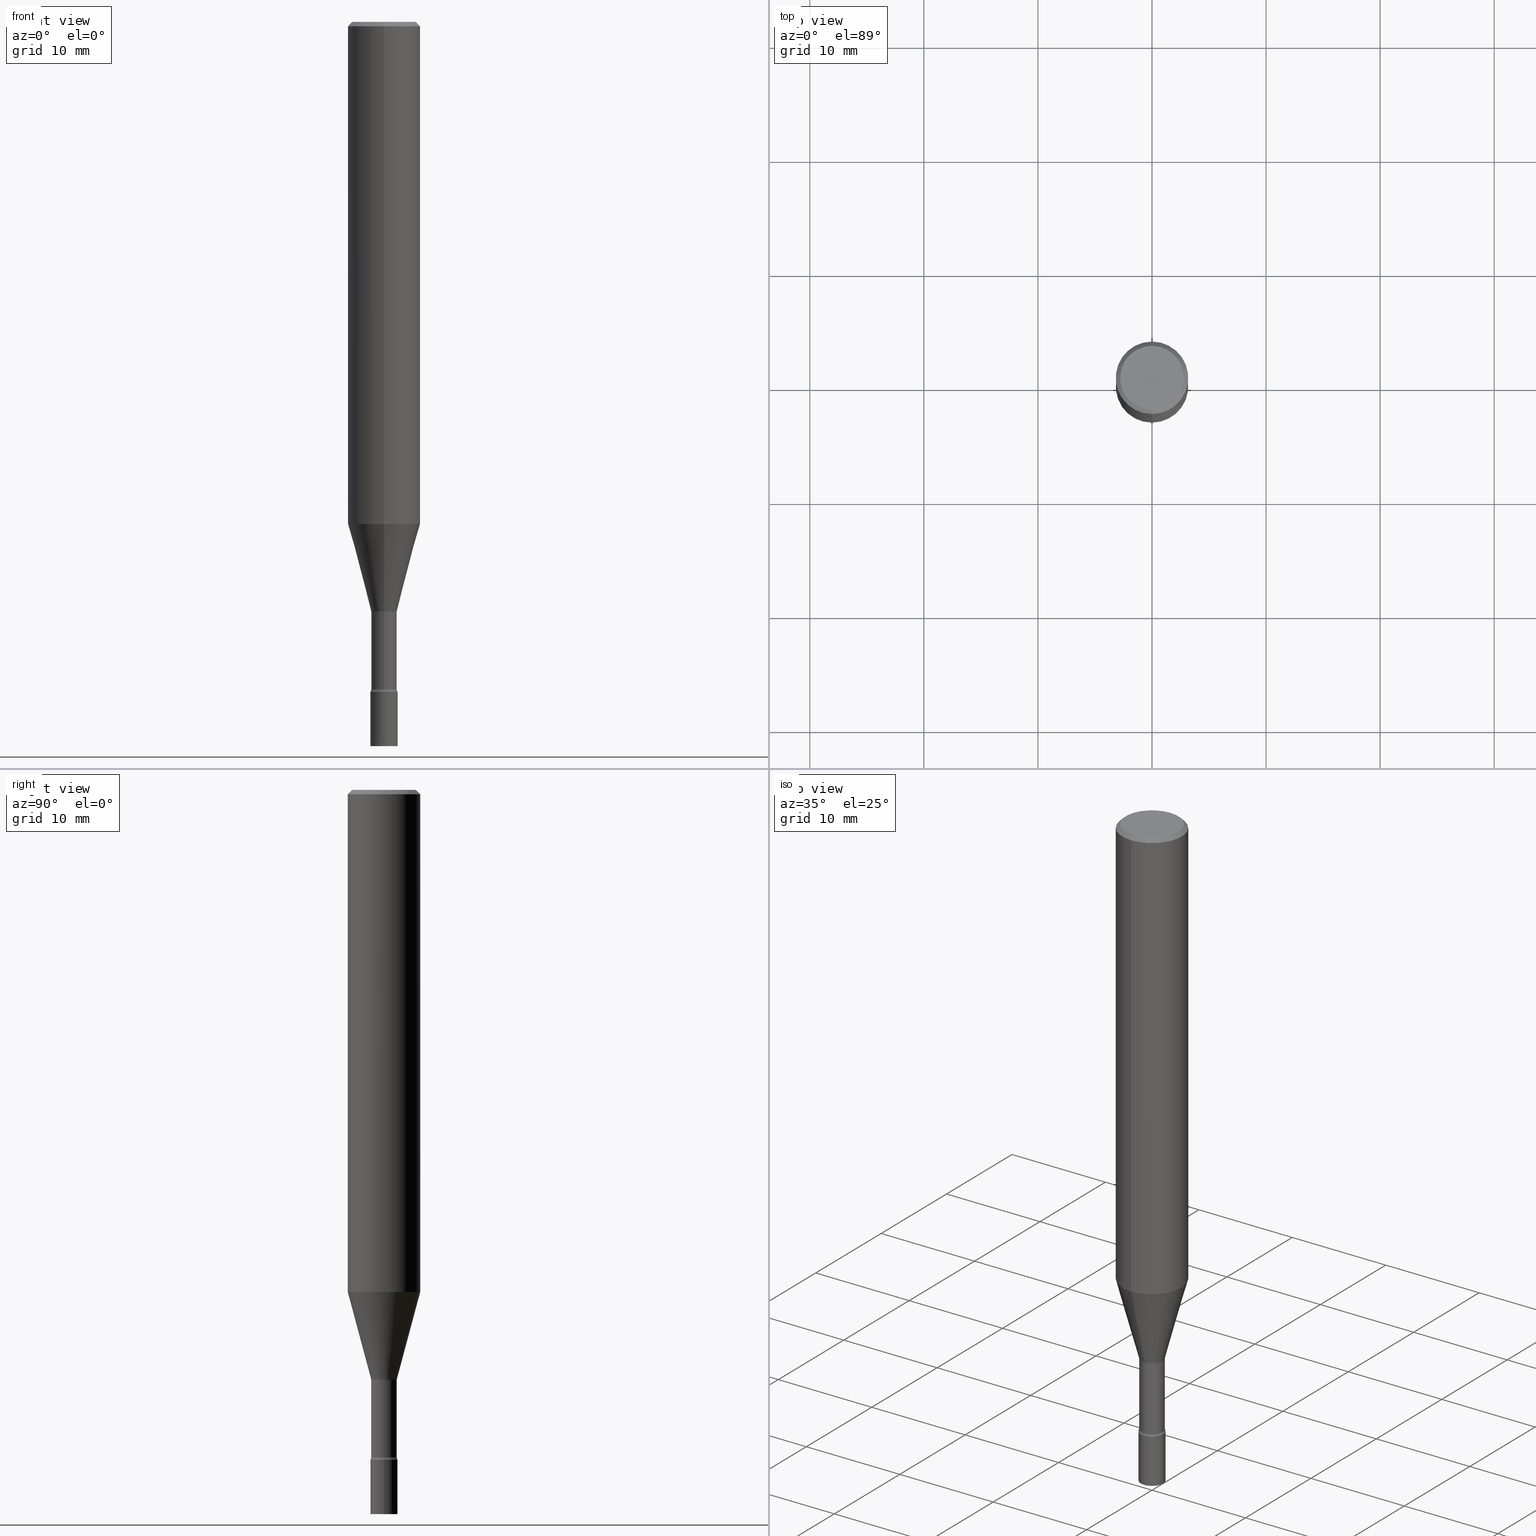
[diagram: canonical four-view strip — front | top / right | iso, engineering-drawing reading convention]
A machine part, canonical four-view strip (front | top / right | iso — engineering-drawing reading convention). The complete STEP part file that produces these views, byte-faithful:
ISO-10303-21;
HEADER;
FILE_DESCRIPTION (( 'STEP AP203' ),
    '1' );
FILE_NAME ('05296.STEP',
    '2024-03-08T23:12:04',
    ( '' ),
    ( '' ),
    'SwSTEP 2.0',
    'SolidWorks 2023',
    '' );
FILE_SCHEMA (( 'CONFIG_CONTROL_DESIGN' ));
ENDSEC;

DATA;
#1 = DIRECTION ( 'NONE',  ( -2.445468806185136877E-29, 3.491481338843145188E-15, 1.000000000000000000 ) ) ;
#2 = ORIENTED_EDGE ( 'NONE', *, *, #275, .F. ) ;
#3 = DIRECTION ( 'NONE',  ( 1.000000000000000000, -6.982962677686277755E-15, 0.000000000000000000 ) ) ;
#4 = ORIENTED_EDGE ( 'NONE', *, *, #489, .F. ) ;
#5 = ORIENTED_EDGE ( 'NONE', *, *, #123, .F. ) ;
#6 = AXIS2_PLACEMENT_3D ( 'NONE', #406, #161, #45 ) ;
#7 = DIRECTION ( 'NONE',  ( 2.445616737647772983E-29, -3.491269492568914221E-15, -1.000000000000000000 ) ) ;
#8 = AXIS2_PLACEMENT_3D ( 'NONE', #22, #463, #139 ) ;
#9 = ORIENTED_EDGE ( 'NONE', *, *, #277, .T. ) ;
#10 = CALENDAR_DATE ( 2024, 8, 3 ) ;
#11 = LINE ( 'NONE', #128, #459 ) ;
#12 = CARTESIAN_POINT ( 'NONE',  ( 8.204981146281365554E-16, 0.1100000000000000283, -3.975340620633669494E-16 ) ) ;
#13 = EDGE_LOOP ( 'NONE', ( #29, #88, #135, #5 ) ) ;
#14 = ORIENTED_EDGE ( 'NONE', *, *, #110, .T. ) ;
#15 = LOCAL_TIME ( 18, 12, 4.000000000000000000, #200 ) ;
#16 = DIRECTION ( 'NONE',  ( -2.445468806185136597E-29, 3.491481338843145583E-15, 1.000000000000000000 ) ) ;
#17 = TOROIDAL_SURFACE ( 'NONE', #331, 0.05910000000000002751, 0.01500000000000000638 ) ;
#18 = DIRECTION ( 'NONE',  ( -2.445616737647772983E-29, 3.491269492568914221E-15, 1.000000000000000000 ) ) ;
#19 = VERTEX_POINT ( 'NONE', #114 ) ;
#20 = VERTEX_POINT ( 'NONE', #84 ) ;
#21 = ADVANCED_FACE ( 'NONE', ( #82 ), #103, .T. ) ;
#22 = CARTESIAN_POINT ( 'NONE',  ( 3.275009495835424539E-16, 0.04689999999999192731, -2.312000000000000277 ) ) ;
#23 = FACE_OUTER_BOUND ( 'NONE', #519, .T. ) ;
#24 = APPROVAL_PERSON_ORGANIZATION ( #53, #307, #249 ) ;
#25 = ORIENTED_EDGE ( 'NONE', *, *, #420, .T. ) ;
#26 = AXIS2_PLACEMENT_3D ( 'NONE', #212, #16, #234 ) ;
#27 = PRODUCT_RELATED_PRODUCT_CATEGORY ( 'detail', '', ( #326 ) ) ;
#28 = DIRECTION ( 'NONE',  ( -6.982962677686264344E-15, -1.000000000000000000, 6.123693927591976054E-15 ) ) ;
#29 = ORIENTED_EDGE ( 'NONE', *, *, #170, .T. ) ;
#30 = APPROVAL_DATE_TIME ( #225, #70 ) ;
#31 = EDGE_CURVE ( 'NONE', #376, #480, #479, .T. ) ;
#32 = DESIGN_CONTEXT ( 'detailed design', #93, 'design' ) ;
#33 = DIRECTION ( 'NONE',  ( -2.445616737647772983E-29, 3.491269492568914221E-15, 1.000000000000000000 ) ) ;
#34 = AXIS2_PLACEMENT_3D ( 'NONE', #490, #492, #3 ) ;
#35 = DIRECTION ( 'NONE',  ( -2.445616737647772983E-29, 3.491269492568914221E-15, 1.000000000000000000 ) ) ;
#36 = CARTESIAN_POINT ( 'NONE',  ( 4.981358301728348415E-29, -7.112059458123878083E-15, -2.036974787463810888 ) ) ;
#37 = CARTESIAN_POINT ( 'NONE',  ( 0.000000000000000000, 0.000000000000000000, 0.000000000000000000 ) ) ;
#38 = MANIFOLD_SOLID_BREP ( 'Body-Move/Copy2[2]', #407 ) ;
#39 = MANIFOLD_SOLID_BREP ( 'Body-Move/Copy2[1]', #240 ) ;
#40 = EDGE_CURVE ( 'NONE', #461, #263, #472, .T. ) ;
#41 = ORIENTED_EDGE ( 'NONE', *, *, #58, .T. ) ;
#42 = LINE ( 'NONE', #194, #384 ) ;
#43 =( LENGTH_UNIT ( ) NAMED_UNIT ( * ) SI_UNIT ( $, .METRE. ) );
#44 = DIRECTION ( 'NONE',  ( -6.982962677686265922E-15, -1.000000000000000000, 3.491269492568914221E-15 ) ) ;
#45 = DIRECTION ( 'NONE',  ( -6.982962677686265922E-15, -1.000000000000000000, 3.491269492568914221E-15 ) ) ;
#46 = DIRECTION ( 'NONE',  ( -6.982962677686265922E-15, -1.000000000000000000, 6.194666652299914454E-15 ) ) ;
#47 = CALENDAR_DATE ( 2024, 8, 3 ) ;
#48 = DIRECTION ( 'NONE',  ( 1.000000000000000000, -6.982962677686277755E-15, 0.000000000000000000 ) ) ;
#49 = ORIENTED_EDGE ( 'NONE', *, *, #393, .F. ) ;
#50 = EDGE_LOOP ( 'NONE', ( #105, #218 ) ) ;
#51 = DATE_AND_TIME ( #47, #56 ) ;
#52 = DIRECTION ( 'NONE',  ( -6.982962677686264344E-15, -1.000000000000000000, 6.123693927591976054E-15 ) ) ;
#53 = PERSON_AND_ORGANIZATION ( #148, #363 ) ;
#54 = AXIS2_PLACEMENT_3D ( 'NONE', #388, #221, #348 ) ;
#55 = FACE_OUTER_BOUND ( 'NONE', #117, .T. ) ;
#56 = LOCAL_TIME ( 18, 12, 4.000000000000000000, #333 ) ;
#57 = ORIENTED_EDGE ( 'NONE', *, *, #40, .T. ) ;
#58 = EDGE_CURVE ( 'NONE', #297, #227, #42, .T. ) ;
#59 = CARTESIAN_POINT ( 'NONE',  ( 5.653923879900035579E-29, -8.072304855405352780E-15, -2.312000000000000277 ) ) ;
#60 = LINE ( 'NONE', #106, #342 ) ;
#61 = ORIENTED_EDGE ( 'NONE', *, *, #356, .T. ) ;
#62 = CARTESIAN_POINT ( 'NONE',  ( -0.04689999999999999725, -8.067259558185121499E-15, -2.500000000000000000 ) ) ;
#63 = AXIS2_PLACEMENT_3D ( 'NONE', #510, #197, #317 ) ;
#64 = AXIS2_PLACEMENT_3D ( 'NONE', #487, #125, #52 ) ;
#65 = ORIENTED_EDGE ( 'NONE', *, *, #310, .F. ) ;
#66 = DIRECTION ( 'NONE',  ( -2.445616737647772983E-29, 3.491269492568914221E-15, 1.000000000000000000 ) ) ;
#67 = VERTEX_POINT ( 'NONE', #520 ) ;
#68 = CARTESIAN_POINT ( 'NONE',  ( 5.632582347746439260E-29, -8.041834803582102873E-15, -2.303273030308291336 ) ) ;
#69 = ORIENTED_EDGE ( 'NONE', *, *, #356, .F. ) ;
#70 = APPROVAL ( #111, 'UNSPECIFIED' ) ;
#71 = CARTESIAN_POINT ( 'NONE',  ( 4.972165051557140757E-29, -7.098073827060517984E-15, -2.033092501787272965 ) ) ;
#72 = AXIS2_PLACEMENT_3D ( 'NONE', #465, #386, #258 ) ;
#73 = APPLICATION_PROTOCOL_DEFINITION ( 'international standard', 'config_control_design', 1994, #93 ) ;
#74 = PERSON_AND_ORGANIZATION ( #148, #363 ) ;
#75 = CARTESIAN_POINT ( 'NONE',  ( 0.000000000000000000, 0.000000000000000000, 0.000000000000000000 ) ) ;
#76 = CARTESIAN_POINT ( 'NONE',  ( 4.238442338125165839E-29, -6.050639171426887853E-15, -1.733077089667678816 ) ) ;
#77 = UNCERTAINTY_MEASURE_WITH_UNIT (LENGTH_MEASURE( 1.000000000000000082E-05 ), #313, 'distance_accuracy_value', 'NONE');
#78 = DIRECTION ( 'NONE',  ( 1.000000000000000000, -6.982962677686266711E-15, 4.876176775795936353E-29 ) ) ;
#79 = AXIS2_PLACEMENT_3D ( 'NONE', #290, #455, #452 ) ;
#80 = CIRCLE ( 'NONE', #398, 0.04461111260566397174 ) ;
#81 = CIRCLE ( 'NONE', #437, 0.01500000000000003587 ) ;
#82 = FACE_OUTER_BOUND ( 'NONE', #108, .T. ) ;
#83 = APPLICATION_PROTOCOL_DEFINITION ( 'international standard', 'config_control_design', 1994, #338 ) ;
#84 = CARTESIAN_POINT ( 'NONE',  ( 3.232969447709020781E-16, 0.04409999999999197201, -2.303273030308291780 ) ) ;
#85 = DIRECTION ( 'NONE',  ( -2.445616737647772983E-29, 3.491269492568914221E-15, 1.000000000000000000 ) ) ;
#86 = AXIS2_PLACEMENT_3D ( 'NONE', #109, #299, #466 ) ;
#87 = DIRECTION ( 'NONE',  ( -2.445616737647772983E-29, 3.491269492568914221E-15, 1.000000000000000000 ) ) ;
#88 = ORIENTED_EDGE ( 'NONE', *, *, #147, .T. ) ;
#89 = APPROVAL_STATUS ( 'not_yet_approved' ) ;
#90 = DIRECTION ( 'NONE',  ( -6.982962677686266711E-15, -1.000000000000000000, 5.824835807386488998E-15 ) ) ;
#91 = DIRECTION ( 'NONE',  ( -2.445616737647772983E-29, 3.491269492568914221E-15, 1.000000000000000000 ) ) ;
#92 = EDGE_CURVE ( 'NONE', #368, #166, #285, .T. ) ;
#93 = APPLICATION_CONTEXT ( 'configuration controlled 3d designs of mechanical parts and assemblies' ) ;
#94 = DATE_AND_TIME ( #369, #15 ) ;
#95 = AXIS2_PLACEMENT_3D ( 'NONE', #36, #192, #188 ) ;
#96 = CARTESIAN_POINT ( 'NONE',  ( 5.654265897441651298E-29, -8.071815066819330562E-15, -2.312000000000000277 ) ) ;
#97 = CC_DESIGN_APPROVAL ( #436, ( #141 ) ) ;
#98 = ORIENTED_EDGE ( 'NONE', *, *, #453, .F. ) ;
#99 = CYLINDRICAL_SURFACE ( 'NONE', #231, 0.04410000000000000031 ) ;
#100 = DIRECTION ( 'NONE',  ( -1.000000000000000000, 6.982962677686265922E-15, -4.883557194083112340E-29 ) ) ;
#101 = ORIENTED_EDGE ( 'NONE', *, *, #403, .T. ) ;
#102 = CARTESIAN_POINT ( 'NONE',  ( -8.575622497214409523E-16, -0.1250000000000000555, -0.01499999999999957791 ) ) ;
#103 = CONICAL_SURFACE ( 'NONE', #214, 0.1250000000000000000, 0.7853981633974473908 ) ;
#104 = CIRCLE ( 'NONE', #34, 0.04689999999999999725 ) ;
#105 = ORIENTED_EDGE ( 'NONE', *, *, #120, .T. ) ;
#106 = CARTESIAN_POINT ( 'NONE',  ( -3.079486540859643229E-16, -0.04410000000000000031, 1.539649846222891150E-16 ) ) ;
#107 = CC_DESIGN_PERSON_AND_ORGANIZATION_ASSIGNMENT ( #282, #238, ( #141 ) ) ;
#108 = EDGE_LOOP ( 'NONE', ( #199, #101, #155, #349 ) ) ;
#109 = CARTESIAN_POINT ( 'NONE',  ( 5.654265897441651298E-29, -8.071815066819330562E-15, -2.312000000000000277 ) ) ;
#110 = EDGE_CURVE ( 'NONE', #20, #394, #449, .T. ) ;
#111 = APPROVAL_STATUS ( 'not_yet_approved' ) ;
#112 = AXIS2_PLACEMENT_3D ( 'NONE', #71, #304, #28 ) ;
#113 = EDGE_LOOP ( 'NONE', ( #433, #295, #294, #49 ) ) ;
#114 = CARTESIAN_POINT ( 'NONE',  ( -0.04689999999999999725, -8.067259558185121499E-15, -2.312000000000000277 ) ) ;
#115 = EDGE_CURVE ( 'NONE', #263, #461, #355, .T. ) ;
#116 = FACE_OUTER_BOUND ( 'NONE', #322, .T. ) ;
#117 = EDGE_LOOP ( 'NONE', ( #206, #284, #246, #423 ) ) ;
#118 = CC_DESIGN_APPROVAL ( #307, ( #311 ) ) ;
#119 = ORIENTED_EDGE ( 'NONE', *, *, #31, .F. ) ;
#120 = EDGE_CURVE ( 'NONE', #166, #368, #428, .T. ) ;
#121 = PERSON_AND_ORGANIZATION ( #148, #363 ) ;
#122 = ORIENTED_EDGE ( 'NONE', *, *, #31, .T. ) ;
#123 = EDGE_CURVE ( 'NONE', #482, #263, #163, .T. ) ;
#124 = APPROVAL_DATE_TIME ( #483, #307 ) ;
#125 = DIRECTION ( 'NONE',  ( -2.445616737647772983E-29, 3.491269492568914221E-15, 1.000000000000000000 ) ) ;
#126 = AXIS2_PLACEMENT_3D ( 'NONE', #268, #278, #517 ) ;
#127 = APPROVAL_ROLE ( '' ) ;
#128 = CARTESIAN_POINT ( 'NONE',  ( 8.728703347107836346E-16, 0.1249999999999999445, -0.01500000000000044874 ) ) ;
#129 = DIRECTION ( 'NONE',  ( 4.937700262164543309E-15, 0.7071067811865444641, -0.7071067811865505703 ) ) ;
#130 = CARTESIAN_POINT ( 'NONE',  ( 3.275009495835470391E-16, 0.04689999999999127506, -2.500000000000000000 ) ) ;
#131 = ORIENTED_EDGE ( 'NONE', *, *, #315, .F. ) ;
#132 = AXIS2_PLACEMENT_3D ( 'NONE', #508, #439, #154 ) ;
#133 = CIRCLE ( 'NONE', #186, 0.04689999999999999725 ) ;
#134 = LINE ( 'NONE', #502, #442 ) ;
#135 = ORIENTED_EDGE ( 'NONE', *, *, #115, .F. ) ;
#136 = CYLINDRICAL_SURFACE ( 'NONE', #302, 0.04410000000000000031 ) ;
#137 = CARTESIAN_POINT ( 'NONE',  ( -4.126930942512085366E-16, -0.05910000000000711212, -2.036974787463810888 ) ) ;
#138 = EDGE_LOOP ( 'NONE', ( #343, #14, #410, #119 ) ) ;
#139 = DIRECTION ( 'NONE',  ( -6.982962677686265922E-15, -1.000000000000000000, 3.491269492568914221E-15 ) ) ;
#140 = ADVANCED_FACE ( 'NONE', ( #254 ), #136, .T. ) ;
#141 = SECURITY_CLASSIFICATION ( '', '', #414 ) ;
#142 = FACE_OUTER_BOUND ( 'NONE', #13, .T. ) ;
#143 = CIRCLE ( 'NONE', #54, 0.04409999999999997949 ) ;
#144 = CONICAL_SURFACE ( 'NONE', #112, 0.04461111260566397174, 0.2617993877991502405 ) ;
#145 = CARTESIAN_POINT ( 'NONE',  ( -3.079486540859080672E-16, -0.04410000000000805637, -2.303273030308291336 ) ) ;
#146 = DIRECTION ( 'NONE',  ( 1.000000000000000000, -7.105427357601001070E-15, 4.926312914173466059E-29 ) ) ;
#147 = EDGE_CURVE ( 'NONE', #67, #461, #193, .T. ) ;
#148 = PERSON ( 'UNSPECIFIED', 'UNSPECIFIED', 'UNSPECIFIED', ('UNSPECIFIED'), ('UNSPECIFIED'), ('UNSPECIFIED') ) ;
#149 = LENGTH_MEASURE_WITH_UNIT ( LENGTH_MEASURE( 0.02539999999999999897 ), #43 );
#150 = LOCAL_TIME ( 18, 12, 4.000000000000000000, #172 ) ;
#151 = AXIS2_PLACEMENT_3D ( 'NONE', #228, #187, #362 ) ;
#152 = AXIS2_PLACEMENT_3D ( 'NONE', #158, #395, #318 ) ;
#153 = ADVANCED_FACE ( 'NONE', ( #116 ), #401, .T. ) ;
#154 = DIRECTION ( 'NONE',  ( 1.000000000000000000, 0.000000000000000000, 0.000000000000000000 ) ) ;
#155 = ORIENTED_EDGE ( 'NONE', *, *, #467, .T. ) ;
#156 = FACE_OUTER_BOUND ( 'NONE', #50, .T. ) ;
#157 = EDGE_CURVE ( 'NONE', #67, #482, #80, .T. ) ;
#158 = CARTESIAN_POINT ( 'NONE',  ( 7.681258945454894762E-16, 0.1100000000000000283, -3.907868531229737716E-16 ) ) ;
#159 = PRODUCT_DEFINITION_SHAPE ( 'NONE', 'NONE',  #289 ) ;
#160 = AXIS2_PLACEMENT_3D ( 'NONE', #447, #85, #46 ) ;
#161 = DIRECTION ( 'NONE',  ( -2.445616737647772983E-29, 3.491269492568914221E-15, 1.000000000000000000 ) ) ;
#162 = APPROVAL_DATE_TIME ( #94, #436 ) ;
#163 = LINE ( 'NONE', #325, #204 ) ;
#164 = FACE_OUTER_BOUND ( 'NONE', #329, .T. ) ;
#165 = CC_DESIGN_PERSON_AND_ORGANIZATION_ASSIGNMENT ( #121, #421, ( #311 ) ) ;
#166 = VERTEX_POINT ( 'NONE', #12 ) ;
#167 = CARTESIAN_POINT ( 'NONE',  ( 0.04689999999999999725, -8.399805804988839471E-15, -2.312000000000000277 ) ) ;
#168 = ORIENTED_EDGE ( 'NONE', *, *, #40, .F. ) ;
#169 = CONICAL_SURFACE ( 'NONE', #286, 0.1250000000000000000, 0.7853981633974473908 ) ;
#170 = EDGE_CURVE ( 'NONE', #482, #67, #373, .T. ) ;
#171 = DIRECTION ( 'NONE',  ( -2.438088387897960049E-29, 3.491481338843145188E-15, 1.000000000000000000 ) ) ;
#172 = COORDINATED_UNIVERSAL_TIME_OFFSET ( 5, 0, .BEHIND. ) ;
#173 = FACE_OUTER_BOUND ( 'NONE', #468, .T. ) ;
#174 = DIRECTION ( 'NONE',  ( 1.000000000000000000, -6.982962677686265922E-15, 4.876176775795935793E-29 ) ) ;
#175 = EDGE_LOOP ( 'NONE', ( #440, #305, #69, #470 ) ) ;
#176 = LOCAL_TIME ( 18, 12, 4.000000000000000000, #454 ) ;
#177 = AXIS2_PLACEMENT_3D ( 'NONE', #474, #485, #233 ) ;
#178 = CIRCLE ( 'NONE', #473, 0.01500000000000003587 ) ;
#179 = DIRECTION ( 'NONE',  ( -2.445616737647772983E-29, 3.491269492568914221E-15, 1.000000000000000000 ) ) ;
#180 = ORIENTED_EDGE ( 'NONE', *, *, #275, .T. ) ;
#181 = DIRECTION ( 'NONE',  ( 1.000000000000000000, -6.982962677686277755E-15, 0.000000000000000000 ) ) ;
#182 = DIRECTION ( 'NONE',  ( -2.445616737647772983E-29, 3.491269492568914221E-15, 1.000000000000000000 ) ) ;
#183 = DIRECTION ( 'NONE',  ( -2.445616737647772983E-29, 3.491269492568914221E-15, 1.000000000000000000 ) ) ;
#184 = CONICAL_SURFACE ( 'NONE', #64, 0.04461111260566397174, 0.2617993877991502405 ) ;
#185 = FACE_OUTER_BOUND ( 'NONE', #138, .T. ) ;
#186 = AXIS2_PLACEMENT_3D ( 'NONE', #261, #344, #181 ) ;
#187 = DIRECTION ( 'NONE',  ( -2.445616737647772983E-29, 3.491269492568914221E-15, 1.000000000000000000 ) ) ;
#188 = DIRECTION ( 'NONE',  ( -6.982962677686265922E-15, -1.000000000000000000, 3.491269492568914221E-15 ) ) ;
#189 = DIRECTION ( 'NONE',  ( -2.445616737647772983E-29, 3.491269492568914221E-15, 1.000000000000000000 ) ) ;
#190 = CC_DESIGN_PERSON_AND_ORGANIZATION_ASSIGNMENT ( #486, #291, ( #311 ) ) ;
#191 = CARTESIAN_POINT ( 'NONE',  ( 3.668425106471662575E-31, -5.236904238853375768E-17, -0.01500000000000001332 ) ) ;
#192 = DIRECTION ( 'NONE',  ( -2.445616737647772983E-29, 3.491269492568914221E-15, 1.000000000000000000 ) ) ;
#193 = LINE ( 'NONE', #361, #256 ) ;
#194 = CARTESIAN_POINT ( 'NONE',  ( 0.04689999999999999725, -3.275009495834859024E-16, 2.286926907848294038E-30 ) ) ;
#195 = ORIENTED_EDGE ( 'NONE', *, *, #157, .T. ) ;
#196 = AXIS2_PLACEMENT_3D ( 'NONE', #422, #91, #247 ) ;
#197 = DIRECTION ( 'NONE',  ( 1.000000000000000000, -7.105427357601001070E-15, 4.926312914173466059E-29 ) ) ;
#198 = LINE ( 'NONE', #367, #501 ) ;
#199 = ORIENTED_EDGE ( 'NONE', *, *, #92, .F. ) ;
#200 = COORDINATED_UNIVERSAL_TIME_OFFSET ( 5, 0, .BEHIND. ) ;
#201 = PLANE ( 'NONE',  #390 ) ;
#202 = ORIENTED_EDGE ( 'NONE', *, *, #123, .T. ) ;
#203 = FACE_OUTER_BOUND ( 'NONE', #354, .T. ) ;
#204 = VECTOR ( 'NONE', #281, 39.37007874015748143 ) ;
#205 = CIRCLE ( 'NONE', #303, 0.1250000000000000000 ) ;
#206 = ORIENTED_EDGE ( 'NONE', *, *, #115, .T. ) ;
#207 = CALENDAR_DATE ( 2024, 8, 3 ) ;
#208 = DIRECTION ( 'NONE',  ( -6.982962677686265922E-15, -1.000000000000000000, 3.491269492568914221E-15 ) ) ;
#209 = EDGE_CURVE ( 'NONE', #166, #242, #11, .T. ) ;
#210 = CARTESIAN_POINT ( 'NONE',  ( 0.000000000000000000, 0.000000000000000000, 0.000000000000000000 ) ) ;
#211 = VERTEX_POINT ( 'NONE', #412 ) ;
#212 = CARTESIAN_POINT ( 'NONE',  ( 6.113672015462842613E-29, -8.728703347107864943E-15, -2.500000000000000000 ) ) ;
#213 = ADVANCED_FACE ( 'NONE', ( #55 ), #283, .T. ) ;
#214 = AXIS2_PLACEMENT_3D ( 'NONE', #191, #445, #360 ) ;
#215 = AXIS2_PLACEMENT_3D ( 'NONE', #385, #182, #306 ) ;
#216 = DIRECTION ( 'NONE',  ( -4.851104656540959542E-15, -0.7071067811865493491, -0.7071067811865456854 ) ) ;
#217 = DIRECTION ( 'NONE',  ( -6.982962677686265922E-15, -1.000000000000000000, 3.483106191921935554E-15 ) ) ;
#218 = ORIENTED_EDGE ( 'NONE', *, *, #92, .T. ) ;
#219 = DIRECTION ( 'NONE',  ( -6.982962677686265922E-15, -1.000000000000000000, 3.491269492568914221E-15 ) ) ;
#220 = EDGE_LOOP ( 'NONE', ( #271, #505, #122, #25 ) ) ;
#221 = DIRECTION ( 'NONE',  ( -2.445616737647772983E-29, 3.491269492568914221E-15, 1.000000000000000000 ) ) ;
#222 = AXIS2_PLACEMENT_3D ( 'NONE', #210, #87, #208 ) ;
#223 = ORIENTED_EDGE ( 'NONE', *, *, #403, .F. ) ;
#224 = ORIENTED_EDGE ( 'NONE', *, *, #411, .T. ) ;
#225 = DATE_AND_TIME ( #438, #229 ) ;
#226 = PERSON_AND_ORGANIZATION ( #148, #363 ) ;
#227 = VERTEX_POINT ( 'NONE', #167 ) ;
#228 = CARTESIAN_POINT ( 'NONE',  ( 3.300217423406445068E-46, -4.711264946716579203E-32, -1.349441788078633552E-17 ) ) ;
#229 = LOCAL_TIME ( 18, 12, 4.000000000000000000, #441 ) ;
#230 = AXIS2_PLACEMENT_3D ( 'NONE', #37, #515, #323 ) ;
#231 = AXIS2_PLACEMENT_3D ( 'NONE', #296, #255, #432 ) ;
#232 = CARTESIAN_POINT ( 'NONE',  ( -3.079486540859143781E-16, -0.04410000000000709186, -2.036974787463810888 ) ) ;
#233 = DIRECTION ( 'NONE',  ( -6.982962677686262766E-15, -1.000000000000000000, 0.000000000000000000 ) ) ;
#234 = DIRECTION ( 'NONE',  ( 1.000000000000000000, -6.982962677686277755E-15, 0.000000000000000000 ) ) ;
#235 = DIRECTION ( 'NONE',  ( 1.839019923739599921E-15, 0.2588190451025249028, 0.9659258262890670910 ) ) ;
#236 = ADVANCED_FACE ( 'NONE', ( #173 ), #336, .T. ) ;
#237 = ORIENTED_EDGE ( 'NONE', *, *, #464, .T. ) ;
#238 = PERSON_AND_ORGANIZATION_ROLE ( 'classification_officer' ) ;
#239 = DIRECTION ( 'NONE',  ( -1.000000000000000000, 6.982962677686265922E-15, -4.876176775795935793E-29 ) ) ;
#240 = CLOSED_SHELL ( 'NONE', ( #514, #251, #153, #273 ) ) ;
#241 = VECTOR ( 'NONE', #216, 39.37007874015748143 ) ;
#242 = VERTEX_POINT ( 'NONE', #378 ) ;
#243 = FACE_OUTER_BOUND ( 'NONE', #494, .T. ) ;
#244 = APPROVAL_STATUS ( 'not_yet_approved' ) ;
#245 = CARTESIAN_POINT ( 'NONE',  ( 3.668425106471662575E-31, -5.236904238853375768E-17, -0.01500000000000001332 ) ) ;
#246 = ORIENTED_EDGE ( 'NONE', *, *, #467, .F. ) ;
#247 = DIRECTION ( 'NONE',  ( -6.982962677686265922E-15, -1.000000000000000000, 3.491269492568914221E-15 ) ) ;
#248 = CIRCLE ( 'NONE', #26, 0.04689999999999999725 ) ;
#249 = APPROVAL_ROLE ( '' ) ;
#250 = CARTESIAN_POINT ( 'NONE',  ( 4.981659634388011298E-29, -7.111627932604452215E-15, -2.036974787463810888 ) ) ;
#251 = ADVANCED_FACE ( 'NONE', ( #330 ), #339, .T. ) ;
#252 = CARTESIAN_POINT ( 'NONE',  ( 3.668425106471662575E-31, -5.236904238853375768E-17, -0.01500000000000001332 ) ) ;
#253 = ORIENTED_EDGE ( 'NONE', *, *, #315, .T. ) ;
#254 = FACE_OUTER_BOUND ( 'NONE', #382, .T. ) ;
#255 = DIRECTION ( 'NONE',  ( -2.445616737647772983E-29, 3.491269492568914221E-15, 1.000000000000000000 ) ) ;
#256 = VECTOR ( 'NONE', #235, 39.37007874015748143 ) ;
#257 = VECTOR ( 'NONE', #495, 39.37007874015748143 ) ;
#258 = DIRECTION ( 'NONE',  ( -6.982962677686265922E-15, -1.000000000000000000, 3.491269492568914221E-15 ) ) ;
#259 = CARTESIAN_POINT ( 'NONE',  ( 5.632582347746439260E-29, -8.041834803582102873E-15, -2.303273030308291336 ) ) ;
#260 = VERTEX_POINT ( 'NONE', #493 ) ;
#261 = CARTESIAN_POINT ( 'NONE',  ( 5.653923879900035579E-29, -8.072304855405352780E-15, -2.312000000000000277 ) ) ;
#262 = EDGE_CURVE ( 'NONE', #20, #260, #418, .T. ) ;
#263 = VERTEX_POINT ( 'NONE', #328 ) ;
#264 = APPROVAL_ROLE ( '' ) ;
#265 = AXIS2_PLACEMENT_3D ( 'NONE', #68, #18, #430 ) ;
#266 = CC_DESIGN_PERSON_AND_ORGANIZATION_ASSIGNMENT ( #353, #504, ( #289 ) ) ;
#267 = PERSON_AND_ORGANIZATION_ROLE ( 'design_owner' ) ;
#268 = CARTESIAN_POINT ( 'NONE',  ( 4.238442338125165839E-29, -6.050639171426887853E-15, -1.733077089667678816 ) ) ;
#269 = DIRECTION ( 'NONE',  ( -2.445468806185136597E-29, 3.491481338843145583E-15, 1.000000000000000000 ) ) ;
#270 = CIRCLE ( 'NONE', #293, 0.04689999999999999725 ) ;
#271 = ORIENTED_EDGE ( 'NONE', *, *, #110, .F. ) ;
#272 =( GEOMETRIC_REPRESENTATION_CONTEXT ( 3 ) GLOBAL_UNCERTAINTY_ASSIGNED_CONTEXT ( ( #77 ) ) GLOBAL_UNIT_ASSIGNED_CONTEXT ( ( #313, #309, #276 ) ) REPRESENTATION_CONTEXT ( 'NONE', 'WORKASPACE' ) );
#273 = ADVANCED_FACE ( 'NONE', ( #279 ), #201, .T. ) ;
#274 = DIRECTION ( 'NONE',  ( -6.982962677686265922E-15, -1.000000000000000000, 4.370956789862821150E-15 ) ) ;
#275 = EDGE_CURVE ( 'NONE', #19, #227, #104, .T. ) ;
#276 =( NAMED_UNIT ( * ) SI_UNIT ( $, .STERADIAN. ) SOLID_ANGLE_UNIT ( ) );
#277 = EDGE_CURVE ( 'NONE', #359, #297, #270, .T. ) ;
#278 = DIRECTION ( 'NONE',  ( -2.445616737647772983E-29, 3.491269492568914221E-15, 1.000000000000000000 ) ) ;
#279 = FACE_OUTER_BOUND ( 'NONE', #389, .T. ) ;
#280 = ORIENTED_EDGE ( 'NONE', *, *, #509, .F. ) ;
#281 = DIRECTION ( 'NONE',  ( -1.807323732225329745E-15, -0.2588190451025181305, 0.9659258262890689783 ) ) ;
#282 = PERSON_AND_ORGANIZATION ( #148, #363 ) ;
#283 = CYLINDRICAL_SURFACE ( 'NONE', #222, 0.1250000000000000000 ) ;
#284 = ORIENTED_EDGE ( 'NONE', *, *, #489, .T. ) ;
#285 = CIRCLE ( 'NONE', #151, 0.1100000000000000283 ) ;
#286 = AXIS2_PLACEMENT_3D ( 'NONE', #245, #7, #415 ) ;
#287 = ORIENTED_EDGE ( 'NONE', *, *, #262, .F. ) ;
#288 = DIRECTION ( 'NONE',  ( -2.445616737647772983E-29, 3.491269492568914221E-15, 1.000000000000000000 ) ) ;
#289 = PRODUCT_DEFINITION ( 'UNKNOWN', '', #311, #32 ) ;
#290 = CARTESIAN_POINT ( 'NONE',  ( 4.972165051557140757E-29, -7.098073827060517984E-15, -2.033092501787272965 ) ) ;
#291 = PERSON_AND_ORGANIZATION_ROLE ( 'creator' ) ;
#292 = DIRECTION ( 'NONE',  ( 2.438088387897960049E-29, -3.491481338843145188E-15, -1.000000000000000000 ) ) ;
#293 = AXIS2_PLACEMENT_3D ( 'NONE', #408, #450, #48 ) ;
#294 = ORIENTED_EDGE ( 'NONE', *, *, #453, .T. ) ;
#295 = ORIENTED_EDGE ( 'NONE', *, *, #509, .T. ) ;
#296 = CARTESIAN_POINT ( 'NONE',  ( 0.000000000000000000, 0.000000000000000000, 0.000000000000000000 ) ) ;
#297 = VERTEX_POINT ( 'NONE', #458 ) ;
#298 = ORIENTED_EDGE ( 'NONE', *, *, #372, .T. ) ;
#299 = DIRECTION ( 'NONE',  ( -2.445616737647772983E-29, 3.491269492568914221E-15, 1.000000000000000000 ) ) ;
#300 = CC_DESIGN_APPROVAL ( #70, ( #289 ) ) ;
#301 = ORIENTED_EDGE ( 'NONE', *, *, #448, .F. ) ;
#302 = AXIS2_PLACEMENT_3D ( 'NONE', #75, #402, #44 ) ;
#303 = AXIS2_PLACEMENT_3D ( 'NONE', #391, #183, #217 ) ;
#304 = DIRECTION ( 'NONE',  ( -2.445616737647772983E-29, 3.491269492568914221E-15, 1.000000000000000000 ) ) ;
#305 = ORIENTED_EDGE ( 'NONE', *, *, #337, .T. ) ;
#306 = DIRECTION ( 'NONE',  ( -6.982962677686265922E-15, -1.000000000000000000, 6.194666652299914454E-15 ) ) ;
#307 = APPROVAL ( #244, 'UNSPECIFIED' ) ;
#308 = ORIENTED_EDGE ( 'NONE', *, *, #209, .T. ) ;
#309 =( NAMED_UNIT ( * ) PLANE_ANGLE_UNIT ( ) SI_UNIT ( $, .RADIAN. ) );
#310 = EDGE_CURVE ( 'NONE', #394, #480, #375, .T. ) ;
#311 = PRODUCT_DEFINITION_FORMATION_WITH_SPECIFIED_SOURCE ( 'ANY', '', #326, .NOT_KNOWN. ) ;
#312 = AXIS2_PLACEMENT_3D ( 'NONE', #76, #35, #274 ) ;
#313 =( CONVERSION_BASED_UNIT ( 'INCH', #149 ) LENGTH_UNIT ( ) NAMED_UNIT ( #335 ) );
#314 = CIRCLE ( 'NONE', #86, 0.04689999999999999725 ) ;
#315 = EDGE_CURVE ( 'NONE', #484, #260, #419, .T. ) ;
#316 = CYLINDRICAL_SURFACE ( 'NONE', #507, 0.04689999999999999725 ) ;
#317 = DIRECTION ( 'NONE',  ( 7.105427357600997914E-15, 1.000000000000000000, 0.000000000000000000 ) ) ;
#318 = DIRECTION ( 'NONE',  ( 6.982962677686265922E-15, 1.000000000000000000, -3.491269492568914221E-15 ) ) ;
#319 = CARTESIAN_POINT ( 'NONE',  ( 8.881784197001251337E-16, 0.1250000000000000000, -4.364086865711142776E-16 ) ) ;
#320 = ADVANCED_BREP_SHAPE_REPRESENTATION ( '05296', ( #39, #38, #132 ), #272 ) ;
#321 = TOROIDAL_SURFACE ( 'NONE', #95, 0.05909999999999999976, 0.01500000000000003587 ) ;
#322 = EDGE_LOOP ( 'NONE', ( #425, #9, #41, #2 ) ) ;
#323 = DIRECTION ( 'NONE',  ( 1.000000000000000000, -6.982962677686266711E-15, 4.876176775795936353E-29 ) ) ;
#324 = ORIENTED_EDGE ( 'NONE', *, *, #170, .F. ) ;
#325 = CARTESIAN_POINT ( 'NONE',  ( -3.115177343353610166E-16, -0.04461111260567106329, -2.033092501787272965 ) ) ;
#326 = PRODUCT ( '05296', '05296', '', ( #503 ) ) ;
#327 = SHAPE_DEFINITION_REPRESENTATION ( #159, #320 ) ;
#328 = CARTESIAN_POINT ( 'NONE',  ( -8.728703347107405431E-16, -0.1250000000000059952, -1.733077089667678150 ) ) ;
#329 = EDGE_LOOP ( 'NONE', ( #223, #426, #308, #371 ) ) ;
#330 = FACE_OUTER_BOUND ( 'NONE', #416, .T. ) ;
#331 = AXIS2_PLACEMENT_3D ( 'NONE', #259, #66, #219 ) ;
#332 = EDGE_CURVE ( 'NONE', #376, #20, #451, .T. ) ;
#333 = COORDINATED_UNIVERSAL_TIME_OFFSET ( 5, 0, .BEHIND. ) ;
#334 = CARTESIAN_POINT ( 'NONE',  ( 3.133493464702041349E-16, 0.04410000000000000031, -1.539649846222891150E-16 ) ) ;
#335 = DIMENSIONAL_EXPONENTS ( 1.000000000000000000, 0.000000000000000000, 0.000000000000000000, 0.000000000000000000, 0.000000000000000000, 0.000000000000000000, 0.000000000000000000 ) ;
#336 = CYLINDRICAL_SURFACE ( 'NONE', #196, 0.1250000000000000000 ) ;
#337 = EDGE_CURVE ( 'NONE', #359, #19, #198, .T. ) ;
#338 = APPLICATION_CONTEXT ( 'configuration controlled 3d designs of mechanical parts and assemblies' ) ;
#339 = PLANE ( 'NONE',  #518 ) ;
#340 = ADVANCED_FACE ( 'NONE', ( #164 ), #169, .T. ) ;
#341 = CC_DESIGN_SECURITY_CLASSIFICATION ( #141, ( #311 ) ) ;
#342 = VECTOR ( 'NONE', #469, 39.37007874015748143 ) ;
#343 = ORIENTED_EDGE ( 'NONE', *, *, #372, .F. ) ;
#344 = DIRECTION ( 'NONE',  ( -2.445468806185136597E-29, 3.491481338843145583E-15, 1.000000000000000000 ) ) ;
#345 = FACE_OUTER_BOUND ( 'NONE', #374, .T. ) ;
#346 = AXIS2_PLACEMENT_3D ( 'NONE', #252, #179, #424 ) ;
#347 = CC_DESIGN_DATE_AND_TIME_ASSIGNMENT ( #377, #366, ( #141 ) ) ;
#348 = DIRECTION ( 'NONE',  ( -6.982962677686265922E-15, -1.000000000000000000, 6.194666652299919187E-15 ) ) ;
#349 = ORIENTED_EDGE ( 'NONE', *, *, #209, .F. ) ;
#350 = CARTESIAN_POINT ( 'NONE',  ( 8.881784197001674364E-16, 0.1249999999999939770, -1.733077089667679260 ) ) ;
#351 = ADVANCED_FACE ( 'NONE', ( #243 ), #184, .T. ) ;
#352 = ADVANCED_FACE ( 'NONE', ( #203 ), #444, .F. ) ;
#353 = PERSON_AND_ORGANIZATION ( #148, #363 ) ;
#354 = EDGE_LOOP ( 'NONE', ( #280, #324, #413, #253 ) ) ;
#355 = CIRCLE ( 'NONE', #126, 0.1250000000000000000 ) ;
#356 = EDGE_CURVE ( 'NONE', #227, #19, #133, .T. ) ;
#357 = PLANE ( 'NONE',  #152 ) ;
#358 = DIRECTION ( 'NONE',  ( -6.982962677686264344E-15, -1.000000000000000000, 6.123693927591976054E-15 ) ) ;
#359 = VERTEX_POINT ( 'NONE', #62 ) ;
#360 = DIRECTION ( 'NONE',  ( 6.982962677686265922E-15, 1.000000000000000000, -3.483106191921935554E-15 ) ) ;
#361 = CARTESIAN_POINT ( 'NONE',  ( 3.169810199613533485E-16, 0.04461111260565687325, -2.033092501787273410 ) ) ;
#362 = DIRECTION ( 'NONE',  ( -6.982962677686265922E-15, -1.000000000000000000, 3.491269492568914221E-15 ) ) ;
#363 = ORGANIZATION ( 'UNSPECIFIED', 'UNSPECIFIED', '' ) ;
#364 = AXIS2_PLACEMENT_3D ( 'NONE', #250, #370, #380 ) ;
#365 = DIRECTION ( 'NONE',  ( -2.445468806185136877E-29, 3.491481338843145188E-15, 1.000000000000000000 ) ) ;
#366 = DATE_TIME_ROLE ( 'classification_date' ) ;
#367 = CARTESIAN_POINT ( 'NONE',  ( -0.04689999999999999725, 3.332445430714869676E-16, -2.306980557329550952E-30 ) ) ;
#368 = VERTEX_POINT ( 'NONE', #500 ) ;
#369 = CALENDAR_DATE ( 2024, 8, 3 ) ;
#370 = DIRECTION ( 'NONE',  ( -2.445616737647772983E-29, 3.491269492568914221E-15, 1.000000000000000000 ) ) ;
#371 = ORIENTED_EDGE ( 'NONE', *, *, #448, .T. ) ;
#372 = EDGE_CURVE ( 'NONE', #20, #376, #429, .T. ) ;
#373 = CIRCLE ( 'NONE', #79, 0.04461111260566397174 ) ;
#374 = EDGE_LOOP ( 'NONE', ( #379, #456, #131, #476 ) ) ;
#375 = CIRCLE ( 'NONE', #496, 0.04689999999999999725 ) ;
#376 = VERTEX_POINT ( 'NONE', #145 ) ;
#377 = DATE_AND_TIME ( #207, #150 ) ;
#378 = CARTESIAN_POINT ( 'NONE',  ( 8.881784197001678308E-16, 0.1249999999999999584, -0.01500000000000044874 ) ) ;
#379 = ORIENTED_EDGE ( 'NONE', *, *, #332, .T. ) ;
#380 = DIRECTION ( 'NONE',  ( -6.982962677686265922E-15, -1.000000000000000000, 6.194666652299919187E-15 ) ) ;
#381 = ORIENTED_EDGE ( 'NONE', *, *, #277, .F. ) ;
#382 = EDGE_LOOP ( 'NONE', ( #287, #298, #224, #98 ) ) ;
#383 = DIRECTION ( 'NONE',  ( -6.982962677686268288E-15, -1.000000000000000000, 0.000000000000000000 ) ) ;
#384 = VECTOR ( 'NONE', #365, 39.37007874015748143 ) ;
#385 = CARTESIAN_POINT ( 'NONE',  ( 5.632923074294664683E-29, -8.041346863772093208E-15, -2.303273030308291336 ) ) ;
#386 = DIRECTION ( 'NONE',  ( -2.445616737647772983E-29, 3.491269492568914221E-15, 1.000000000000000000 ) ) ;
#387 = CC_DESIGN_PERSON_AND_ORGANIZATION_ASSIGNMENT ( #74, #267, ( #326 ) ) ;
#388 = CARTESIAN_POINT ( 'NONE',  ( 4.981659634388011298E-29, -7.111627932604452215E-15, -2.036974787463810888 ) ) ;
#389 = EDGE_LOOP ( 'NONE', ( #435, #381 ) ) ;
#390 = AXIS2_PLACEMENT_3D ( 'NONE', #130, #292, #239 ) ;
#391 = CARTESIAN_POINT ( 'NONE',  ( 3.668425106471662575E-31, -5.236904238853375768E-17, -0.01500000000000001332 ) ) ;
#392 = ADVANCED_FACE ( 'NONE', ( #345 ), #99, .T. ) ;
#393 = EDGE_CURVE ( 'NONE', #482, #484, #81, .T. ) ;
#394 = VERTEX_POINT ( 'NONE', #497 ) ;
#395 = DIRECTION ( 'NONE',  ( 2.445616737647772703E-29, -3.491269492568914221E-15, -1.000000000000000000 ) ) ;
#396 = ADVANCED_FACE ( 'NONE', ( #498 ), #491, .F. ) ;
#397 = ADVANCED_FACE ( 'NONE', ( #23 ), #434, .F. ) ;
#398 = AXIS2_PLACEMENT_3D ( 'NONE', #405, #189, #358 ) ;
#399 = ADVANCED_FACE ( 'NONE', ( #142 ), #144, .T. ) ;
#400 = LINE ( 'NONE', #319, #409 ) ;
#401 = CYLINDRICAL_SURFACE ( 'NONE', #230, 0.04689999999999999725 ) ;
#402 = DIRECTION ( 'NONE',  ( -2.445616737647772983E-29, 3.491269492568914221E-15, 1.000000000000000000 ) ) ;
#403 = EDGE_CURVE ( 'NONE', #368, #211, #427, .T. ) ;
#404 = FACE_OUTER_BOUND ( 'NONE', #113, .T. ) ;
#405 = CARTESIAN_POINT ( 'NONE',  ( 4.972165051557140757E-29, -7.098073827060517984E-15, -2.033092501787272965 ) ) ;
#406 = CARTESIAN_POINT ( 'NONE',  ( 3.300217423406445068E-46, -4.711264946716579203E-32, -1.349441788078633552E-17 ) ) ;
#407 = CLOSED_SHELL ( 'NONE', ( #499, #392, #431, #21, #213, #399, #351, #236, #340, #516, #397, #396, #140, #352 ) ) ;
#408 = CARTESIAN_POINT ( 'NONE',  ( 6.113672015462842613E-29, -8.728703347107864943E-15, -2.500000000000000000 ) ) ;
#409 = VECTOR ( 'NONE', #33, 39.37007874015748143 ) ;
#410 = ORIENTED_EDGE ( 'NONE', *, *, #310, .T. ) ;
#411 = EDGE_CURVE ( 'NONE', #376, #484, #60, .T. ) ;
#412 = CARTESIAN_POINT ( 'NONE',  ( -8.728703347107828458E-16, -0.1250000000000000555, -0.01499999999999957791 ) ) ;
#413 = ORIENTED_EDGE ( 'NONE', *, *, #393, .T. ) ;
#414 = SECURITY_CLASSIFICATION_LEVEL ( 'unclassified' ) ;
#415 = DIRECTION ( 'NONE',  ( 6.982962677686265922E-15, 1.000000000000000000, -3.483106191921935554E-15 ) ) ;
#416 = EDGE_LOOP ( 'NONE', ( #61, #180 ) ) ;
#417 = ORIENTED_EDGE ( 'NONE', *, *, #147, .F. ) ;
#418 = LINE ( 'NONE', #334, #257 ) ;
#419 = CIRCLE ( 'NONE', #364, 0.04409999999999997949 ) ;
#420 = EDGE_CURVE ( 'NONE', #480, #394, #314, .T. ) ;
#421 = PERSON_AND_ORGANIZATION_ROLE ( 'design_supplier' ) ;
#422 = CARTESIAN_POINT ( 'NONE',  ( 0.000000000000000000, 0.000000000000000000, 0.000000000000000000 ) ) ;
#423 = ORIENTED_EDGE ( 'NONE', *, *, #464, .F. ) ;
#424 = DIRECTION ( 'NONE',  ( -6.982962677686265922E-15, -1.000000000000000000, 3.483106191921935554E-15 ) ) ;
#425 = ORIENTED_EDGE ( 'NONE', *, *, #337, .F. ) ;
#426 = ORIENTED_EDGE ( 'NONE', *, *, #120, .F. ) ;
#427 = LINE ( 'NONE', #102, #241 ) ;
#428 = CIRCLE ( 'NONE', #6, 0.1100000000000000283 ) ;
#429 = CIRCLE ( 'NONE', #215, 0.04410000000000001419 ) ;
#430 = DIRECTION ( 'NONE',  ( -6.982962677686265922E-15, -1.000000000000000000, 3.491269492568914221E-15 ) ) ;
#431 = ADVANCED_FACE ( 'NONE', ( #185 ), #17, .F. ) ;
#432 = DIRECTION ( 'NONE',  ( -6.982962677686265922E-15, -1.000000000000000000, 3.491269492568914221E-15 ) ) ;
#433 = ORIENTED_EDGE ( 'NONE', *, *, #157, .F. ) ;
#434 = PLANE ( 'NONE',  #8 ) ;
#435 = ORIENTED_EDGE ( 'NONE', *, *, #477, .F. ) ;
#436 = APPROVAL ( #89, 'UNSPECIFIED' ) ;
#437 = AXIS2_PLACEMENT_3D ( 'NONE', #137, #100, #383 ) ;
#438 = CALENDAR_DATE ( 2024, 8, 3 ) ;
#439 = DIRECTION ( 'NONE',  ( 0.000000000000000000, 0.000000000000000000, 1.000000000000000000 ) ) ;
#440 = ORIENTED_EDGE ( 'NONE', *, *, #477, .T. ) ;
#441 = COORDINATED_UNIVERSAL_TIME_OFFSET ( 5, 0, .BEHIND. ) ;
#442 = VECTOR ( 'NONE', #462, 39.37007874015748143 ) ;
#443 = DIRECTION ( 'NONE',  ( 7.105427357601001859E-15, 1.000000000000000000, 0.000000000000000000 ) ) ;
#444 = TOROIDAL_SURFACE ( 'NONE', #72, 0.05909999999999999976, 0.01500000000000003587 ) ;
#445 = DIRECTION ( 'NONE',  ( 2.445616737647772983E-29, -3.491269492568914221E-15, -1.000000000000000000 ) ) ;
#446 = CARTESIAN_POINT ( 'NONE',  ( -3.115177343353610166E-16, -0.04461111260567106329, -2.033092501787272965 ) ) ;
#447 = CARTESIAN_POINT ( 'NONE',  ( 5.632923074294664683E-29, -8.041346863772093208E-15, -2.303273030308291336 ) ) ;
#448 = EDGE_CURVE ( 'NONE', #242, #211, #205, .T. ) ;
#449 = CIRCLE ( 'NONE', #63, 0.01500000000000001159 ) ;
#450 = DIRECTION ( 'NONE',  ( -2.445468806185136597E-29, 3.491481338843145583E-15, 1.000000000000000000 ) ) ;
#451 = CIRCLE ( 'NONE', #160, 0.04410000000000001419 ) ;
#452 = DIRECTION ( 'NONE',  ( -6.982962677686264344E-15, -1.000000000000000000, 6.123693927591976054E-15 ) ) ;
#453 = EDGE_CURVE ( 'NONE', #260, #484, #143, .T. ) ;
#454 = COORDINATED_UNIVERSAL_TIME_OFFSET ( 5, 0, .BEHIND. ) ;
#455 = DIRECTION ( 'NONE',  ( -2.445616737647772983E-29, 3.491269492568914221E-15, 1.000000000000000000 ) ) ;
#456 = ORIENTED_EDGE ( 'NONE', *, *, #262, .T. ) ;
#457 = PERSON_AND_ORGANIZATION ( #148, #363 ) ;
#458 = CARTESIAN_POINT ( 'NONE',  ( 0.04689999999999999725, -9.056204296691351634E-15, -2.500000000000000000 ) ) ;
#459 = VECTOR ( 'NONE', #129, 39.37007874015748143 ) ;
#460 = CC_DESIGN_DATE_AND_TIME_ASSIGNMENT ( #51, #488, ( #289 ) ) ;
#461 = VERTEX_POINT ( 'NONE', #350 ) ;
#462 = DIRECTION ( 'NONE',  ( -2.445616737647772983E-29, 3.491269492568914221E-15, 1.000000000000000000 ) ) ;
#463 = DIRECTION ( 'NONE',  ( -2.445616737647772703E-29, 3.491269492568914221E-15, 1.000000000000000000 ) ) ;
#464 = EDGE_CURVE ( 'NONE', #263, #211, #134, .T. ) ;
#465 = CARTESIAN_POINT ( 'NONE',  ( 4.981358301728348415E-29, -7.112059458123878083E-15, -2.036974787463810888 ) ) ;
#466 = DIRECTION ( 'NONE',  ( -6.982962677686266711E-15, -1.000000000000000000, 5.824835807386488998E-15 ) ) ;
#467 = EDGE_CURVE ( 'NONE', #211, #242, #481, .T. ) ;
#468 = EDGE_LOOP ( 'NONE', ( #4, #57, #237, #301 ) ) ;
#469 = DIRECTION ( 'NONE',  ( -2.445616737647772983E-29, 3.491269492568914221E-15, 1.000000000000000000 ) ) ;
#470 = ORIENTED_EDGE ( 'NONE', *, *, #58, .F. ) ;
#471 = APPROVAL_PERSON_ORGANIZATION ( #226, #70, #264 ) ;
#472 = CIRCLE ( 'NONE', #312, 0.1250000000000000000 ) ;
#473 = AXIS2_PLACEMENT_3D ( 'NONE', #513, #146, #443 ) ;
#474 = CARTESIAN_POINT ( 'NONE',  ( -4.126930942512021764E-16, -0.05910000000000806969, -2.303273030308291336 ) ) ;
#475 = CARTESIAN_POINT ( 'NONE',  ( 0.000000000000000000, 0.000000000000000000, 0.000000000000000000 ) ) ;
#476 = ORIENTED_EDGE ( 'NONE', *, *, #411, .F. ) ;
#477 = EDGE_CURVE ( 'NONE', #297, #359, #248, .T. ) ;
#478 = CARTESIAN_POINT ( 'NONE',  ( -3.275009495834293509E-16, -0.04690000000000807412, -2.311999999999999833 ) ) ;
#479 = CIRCLE ( 'NONE', #177, 0.01500000000000001159 ) ;
#480 = VERTEX_POINT ( 'NONE', #478 ) ;
#481 = CIRCLE ( 'NONE', #346, 0.1250000000000000000 ) ;
#482 = VERTEX_POINT ( 'NONE', #446 ) ;
#483 = DATE_AND_TIME ( #10, #176 ) ;
#484 = VERTEX_POINT ( 'NONE', #232 ) ;
#485 = DIRECTION ( 'NONE',  ( -1.000000000000000000, 6.982962677686265922E-15, -4.883557194083112340E-29 ) ) ;
#486 = PERSON_AND_ORGANIZATION ( #148, #363 ) ;
#487 = CARTESIAN_POINT ( 'NONE',  ( 4.972165051557140757E-29, -7.098073827060517984E-15, -2.033092501787272965 ) ) ;
#488 = DATE_TIME_ROLE ( 'creation_date' ) ;
#489 = EDGE_CURVE ( 'NONE', #461, #242, #400, .T. ) ;
#490 = CARTESIAN_POINT ( 'NONE',  ( 5.653923879900035579E-29, -8.072304855405352780E-15, -2.312000000000000277 ) ) ;
#491 = TOROIDAL_SURFACE ( 'NONE', #265, 0.05910000000000002751, 0.01500000000000000638 ) ;
#492 = DIRECTION ( 'NONE',  ( -2.445468806185136597E-29, 3.491481338843145583E-15, 1.000000000000000000 ) ) ;
#493 = CARTESIAN_POINT ( 'NONE',  ( 3.133493464702603905E-16, 0.04409999999999286713, -2.036974787463811332 ) ) ;
#494 = EDGE_LOOP ( 'NONE', ( #417, #195, #202, #168 ) ) ;
#495 = DIRECTION ( 'NONE',  ( -2.445616737647772983E-29, 3.491269492568914221E-15, 1.000000000000000000 ) ) ;
#496 = AXIS2_PLACEMENT_3D ( 'NONE', #96, #288, #90 ) ;
#497 = CARTESIAN_POINT ( 'NONE',  ( 3.332445430715435191E-16, 0.04689999999999193425, -2.312000000000000277 ) ) ;
#498 = FACE_OUTER_BOUND ( 'NONE', #220, .T. ) ;
#499 = ADVANCED_FACE ( 'NONE', ( #404 ), #321, .F. ) ;
#500 = CARTESIAN_POINT ( 'NONE',  ( -8.061085147381547495E-16, -0.1100000000000000283, 3.705452263017942876E-16 ) ) ;
#501 = VECTOR ( 'NONE', #1, 39.37007874015748143 ) ;
#502 = CARTESIAN_POINT ( 'NONE',  ( -8.728703347107832402E-16, -0.1250000000000000000, 4.364086865711142776E-16 ) ) ;
#503 = MECHANICAL_CONTEXT ( 'NONE', #338, 'mechanical' ) ;
#504 = PERSON_AND_ORGANIZATION_ROLE ( 'creator' ) ;
#505 = ORIENTED_EDGE ( 'NONE', *, *, #332, .F. ) ;
#506 = APPROVAL_PERSON_ORGANIZATION ( #457, #436, #127 ) ;
#507 = AXIS2_PLACEMENT_3D ( 'NONE', #475, #269, #78 ) ;
#508 = CARTESIAN_POINT ( 'NONE',  ( 0.000000000000000000, 0.000000000000000000, 0.000000000000000000 ) ) ;
#509 = EDGE_CURVE ( 'NONE', #67, #260, #178, .T. ) ;
#510 = CARTESIAN_POINT ( 'NONE',  ( 4.199307568342757103E-16, 0.05909999999999198533, -2.303273030308291780 ) ) ;
#511 = FACE_OUTER_BOUND ( 'NONE', #175, .T. ) ;
#512 = ORIENTED_EDGE ( 'NONE', *, *, #420, .F. ) ;
#513 = CARTESIAN_POINT ( 'NONE',  ( 4.199307568342689557E-16, 0.05909999999999288739, -2.036974787463811332 ) ) ;
#514 = ADVANCED_FACE ( 'NONE', ( #511 ), #316, .T. ) ;
#515 = DIRECTION ( 'NONE',  ( -2.445468806185136597E-29, 3.491481338843145583E-15, 1.000000000000000000 ) ) ;
#516 = ADVANCED_FACE ( 'NONE', ( #156 ), #357, .F. ) ;
#517 = DIRECTION ( 'NONE',  ( -6.982962677686265922E-15, -1.000000000000000000, 4.370956789862821150E-15 ) ) ;
#518 = AXIS2_PLACEMENT_3D ( 'NONE', #59, #171, #174 ) ;
#519 = EDGE_LOOP ( 'NONE', ( #512, #65 ) ) ;
#520 = CARTESIAN_POINT ( 'NONE',  ( 6.025797198307604171E-16, 0.04461111260565687325, -2.033092501787273410 ) ) ;
ENDSEC;
END-ISO-10303-21;
